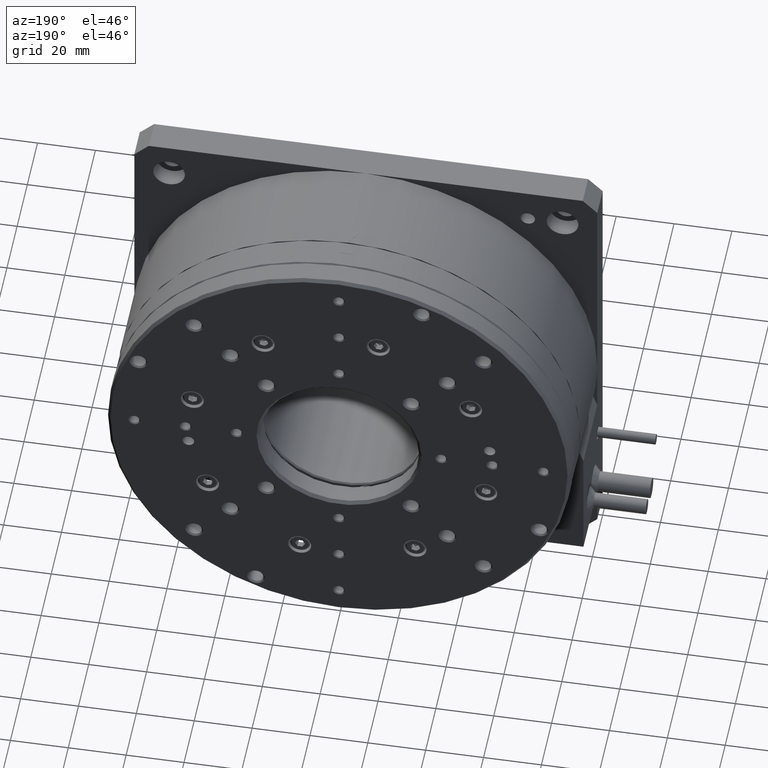
[diagram: clean part render]
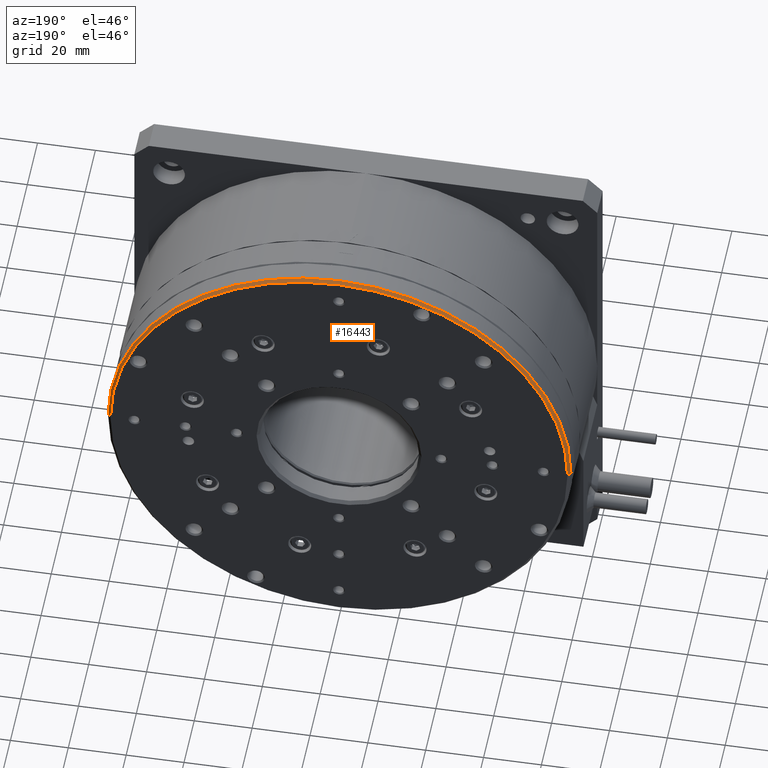
[diagram: same view with one face highlighted and labeled with its STEP entity id]
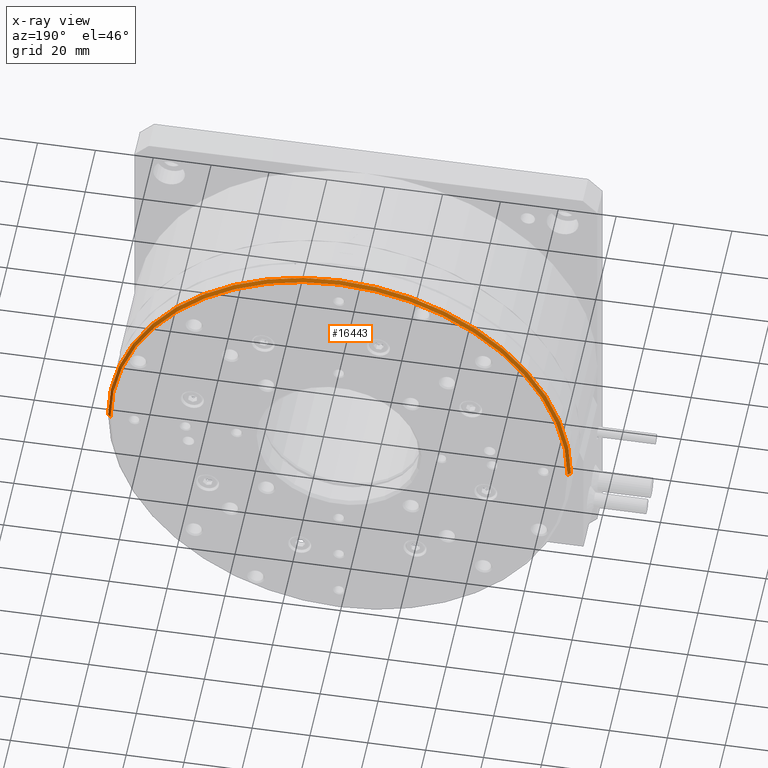
[diagram: x-ray of the same camera — body ghosted, the highlighted face saturated]
A machine part, auxiliary view. The second image highlights one B-rep face of the part: STEP entity #16443.
The next image is the same camera in x-ray: the body ghosted, the highlighted face saturated — about 0% of this face is hidden behind the body in this view.
In plain terms, the highlighted conical surface has half-angle 45 deg.
Its self-contained STEP definition (entity closure, byte-faithful):
#115 = CIRCLE ( 'NONE', #16835, 79.00000000000000000 ) ;
#463 = FACE_OUTER_BOUND ( 'NONE', #2177, .T. ) ;
#2177 = EDGE_LOOP ( 'NONE', ( #11155, #6764, #5793, #4096 ) ) ;
#2405 = CARTESIAN_POINT ( 'NONE',  ( 0.9999999999999870100, 63.00000000000001400, -80.00000000000009900 ) ) ;
#2754 = CONICAL_SURFACE ( 'NONE', #8266, 79.00000000000000000, 0.7853981633974621600 ) ;
#2782 = DIRECTION ( 'NONE',  ( -1.000000000000000000, 3.513364001978343500E-016, 0.0000000000000000000 ) ) ;
#2989 = DIRECTION ( 'NONE',  ( -4.014435913841642000E-016, -1.000000000000000000, 4.301710841555254300E-016 ) ) ;
#3815 = DIRECTION ( 'NONE',  ( -0.7071067811865577900, -0.7071067811865373600, 3.907724963002873500E-016 ) ) ;
#4096 = ORIENTED_EDGE ( 'NONE', *, *, #6462, .F. ) ;
#4331 = LINE ( 'NONE', #14096, #16911 ) ;
#4389 = DIRECTION ( 'NONE',  ( -4.014435913841642000E-016, -1.000000000000000000, 4.301710841555254300E-016 ) ) ;
#4425 = LINE ( 'NONE', #14644, #14909 ) ;
#5793 = ORIENTED_EDGE ( 'NONE', *, *, #11436, .F. ) ;
#5892 = CARTESIAN_POINT ( 'NONE',  ( 79.99999999999997200, 62.00000000000000000, -80.00000000000011400 ) ) ;
#6462 = EDGE_CURVE ( 'NONE', #12172, #10618, #4331, .T. ) ;
#6764 = ORIENTED_EDGE ( 'NONE', *, *, #16808, .T. ) ;
#7143 = EDGE_CURVE ( 'NONE', #13257, #12172, #115, .T. ) ;
#7513 = VERTEX_POINT ( 'NONE', #14559 ) ;
#8266 = AXIS2_PLACEMENT_3D ( 'NONE', #8289, #2989, #16229 ) ;
#8289 = CARTESIAN_POINT ( 'NONE',  ( 79.99999999999997200, 62.99999999999998600, -80.00000000000011400 ) ) ;
#8728 = DIRECTION ( 'NONE',  ( 0.7071067811865570100, -0.7071067811865379100, 3.041768906767367600E-016 ) ) ;
#9782 = DIRECTION ( 'NONE',  ( -1.000000000000000000, 4.336808689942016700E-016, 0.0000000000000000000 ) ) ;
#10618 = VERTEX_POINT ( 'NONE', #11595 ) ;
#10718 = AXIS2_PLACEMENT_3D ( 'NONE', #5892, #4389, #9782 ) ;
#10931 = CARTESIAN_POINT ( 'NONE',  ( 79.99999999999997200, 62.99999999999998600, -80.00000000000011400 ) ) ;
#11155 = ORIENTED_EDGE ( 'NONE', *, *, #7143, .F. ) ;
#11436 = EDGE_CURVE ( 'NONE', #10618, #7513, #16314, .T. ) ;
#11595 = CARTESIAN_POINT ( 'NONE',  ( 159.9999999999999700, 61.99999999999996400, -80.00000000000011400 ) ) ;
#12172 = VERTEX_POINT ( 'NONE', #12982 ) ;
#12982 = CARTESIAN_POINT ( 'NONE',  ( 158.9999999999999700, 62.99999999999995700, -80.00000000000011400 ) ) ;
#13257 = VERTEX_POINT ( 'NONE', #2405 ) ;
#14096 = CARTESIAN_POINT ( 'NONE',  ( 158.9999999999999700, 62.99999999999995700, -80.00000000000011400 ) ) ;
#14559 = CARTESIAN_POINT ( 'NONE',  ( -2.775557561562891400E-014, 62.00000000000003600, -80.00000000000009900 ) ) ;
#14644 = CARTESIAN_POINT ( 'NONE',  ( 0.9999999999999731300, 63.00000000000001400, -80.00000000000009900 ) ) ;
#14909 = VECTOR ( 'NONE', #3815, 1000.000000000000000 ) ;
#15015 = DIRECTION ( 'NONE',  ( 4.014435913841642000E-016, 1.000000000000000000, -4.301710841555254300E-016 ) ) ;
#16229 = DIRECTION ( 'NONE',  ( 1.000000000000000000, -3.513364001978343500E-016, 0.0000000000000000000 ) ) ;
#16314 = CIRCLE ( 'NONE', #10718, 80.00000000000001400 ) ;
#16443 = ADVANCED_FACE ( 'NONE', ( #463 ), #2754, .T. ) ;
#16808 = EDGE_CURVE ( 'NONE', #13257, #7513, #4425, .T. ) ;
#16835 = AXIS2_PLACEMENT_3D ( 'NONE', #10931, #15015, #2782 ) ;
#16911 = VECTOR ( 'NONE', #8728, 1000.000000000000100 ) ;